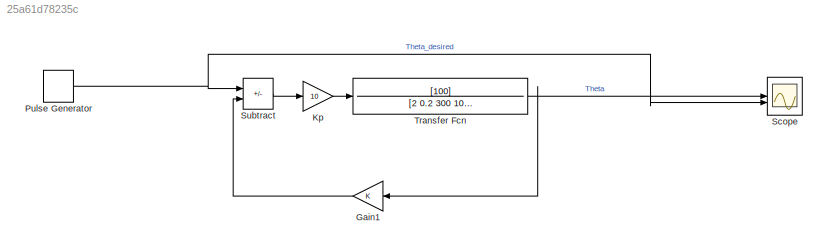
MODEL slx_25a61d78235c
KIND model
CONFIG AbsTol = auto
CONFIG EnableMultiTasking = off
CONFIG FixedStep = auto
CONFIG MaxStep = auto
CONFIG MinStep = auto
CONFIG RelTol = 1e-3
CONFIG SampleTimeConstraint = Unconstrained
CONFIG SolverName = VariableStepAuto
CONFIG StartTime = 0.0
CONFIG StopTime = 50
BLOCK [Gain] Gain1
  NameLocation = top
BLOCK [Gain] Kp
  Gain = 10
BLOCK [DiscretePulseGenerator] Pulse Generator
  Period = 5
  PulseType = Time based
  PulseWidth = 50
BLOCK [Scope] Scope
  Floating = off
  NumInputPorts = 2
  ScopeSpecificationString = Simulink.scopes.TimeScopeBlockCfg('CurrentConfiguration', extmgr.ConfigurationSet(extmgr.Configuration('Core','General UI',true),extmgr.Configuration('Core','Source UI',true),extmgr.Configuration('Sources','WiredSimulink',true),extmgr.Configuration('Visuals','Time Domain',true,'SerializedDisplays',{struct('MinYLimReal','-1.90955','MaxYLimReal','2.67349','YLabelReal','Theta2','MinYLimMag','0.00000'...<+1502ch>
BLOCK [Sum] Subtract
  IconShape = rectangular
  Inputs = +-
BLOCK [TransferFcn] Transfer Fcn
  Denominator = [2 0.2 300 10 0]
  Numerator = [100]
LINE Gain1:1 -> Subtract:2
LINE Kp:1 -> Transfer Fcn:1
NET Pulse Generator:1 -> Scope:2, Subtract:1
LINE Subtract:1 -> Kp:1
NET Transfer Fcn:1 -> Gain1:1, Scope:1
note: NET lines group one-source signal fan-out (src -> all destinations, sorted); 1:1 wires keep LINE
